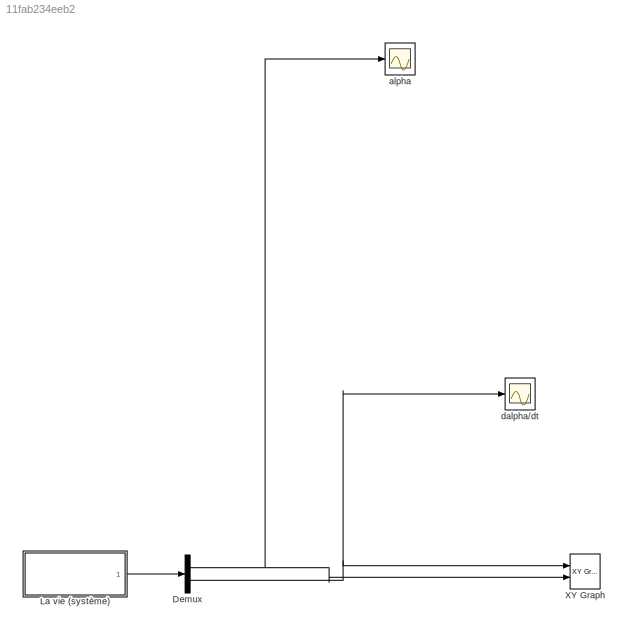
MODEL slx_11fab234eeb2
KIND model
CONFIG AbsTol = auto
CONFIG FixedStep = 0.1
CONFIG MaxStep = auto
CONFIG MinStep = auto
CONFIG RelTol = 1e-8
CONFIG SampleTimeConstraint = Unconstrained
CONFIG Solver = ode3
CONFIG SolverMode = Auto
CONFIG SolverName = ode3
CONFIG StartTime = 0.0
CONFIG StopTime = 100
BLOCK [Demux] Demux
  DisplayOption = bar
  Outputs = 2
  Ports = [1, 2]
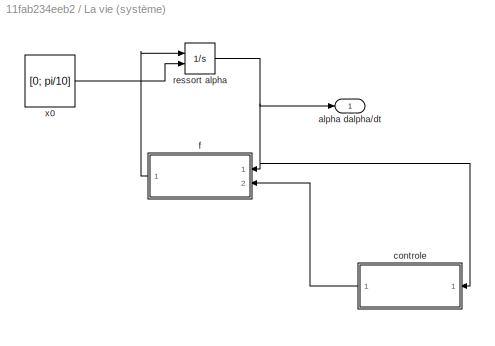
BLOCK [SubSystem] La vie (système)
  Ports = [0, 1]
  RequestExecContextInheritance = off
BLOCK [Outport] La vie (système)/alpha dalpha//dt
  IconDisplay = Port number
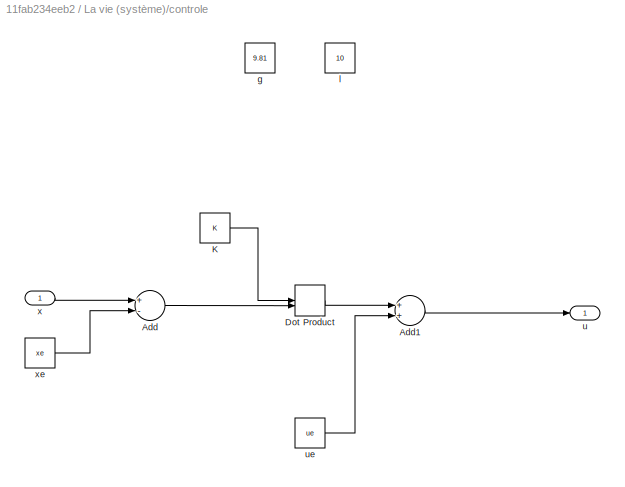
BLOCK [SubSystem] La vie (système)/controle
  Ports = [1, 1]
  RequestExecContextInheritance = off
  TreatAsAtomicUnit = on
BLOCK [Sum] La vie (système)/controle/Add
  InputSameDT = off
  Inputs = +-
  OutDataTypeStr = Inherit: Inherit via internal rule
  Ports = [2, 1]
  SaturateOnIntegerOverflow = off
BLOCK [Sum] La vie (système)/controle/Add1
  InputSameDT = off
  OutDataTypeStr = Inherit: Inherit via internal rule
  Ports = [2, 1]
  SaturateOnIntegerOverflow = off
BLOCK [DotProduct] La vie (système)/controle/Dot Product
  OutDataTypeStr = Inherit: Inherit via internal rule
BLOCK [Constant] La vie (système)/controle/K
  Value = K
BLOCK [Constant] La vie (système)/controle/g
  Value = 9.81
BLOCK [Constant] La vie (système)/controle/l
  Value = 10
BLOCK [Outport] La vie (système)/controle/u
  IconDisplay = Port number
BLOCK [Constant] La vie (système)/controle/ue
  Value = ue
BLOCK [Inport] La vie (système)/controle/x
  IconDisplay = Port number
BLOCK [Constant] La vie (système)/controle/xe
  Value = xe
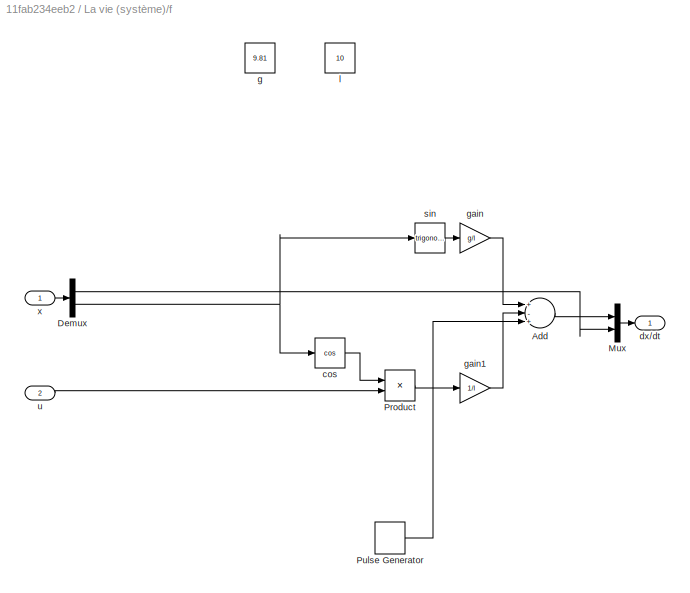
BLOCK [SubSystem] La vie (système)/f
  Ports = [2, 1]
  RequestExecContextInheritance = off
  TreatAsAtomicUnit = on
BLOCK [Gain] La vie (système)/f/ gain
  Gain = g/l
  OutDataTypeStr = Inherit: Inherit via internal rule
  ParamDataTypeStr = Inherit: Inherit via internal rule
  SaturateOnIntegerOverflow = off
BLOCK [Gain] La vie (système)/f/ gain1
  Gain = 1/l
  OutDataTypeStr = Inherit: Inherit via internal rule
  ParamDataTypeStr = Inherit: Inherit via internal rule
  SaturateOnIntegerOverflow = off
BLOCK [Sum] La vie (système)/f/Add
  InputSameDT = off
  Inputs = +-+
  OutDataTypeStr = Inherit: Inherit via internal rule
  Ports = [3, 1]
  SaturateOnIntegerOverflow = off
BLOCK [Demux] La vie (système)/f/Demux
  DisplayOption = bar
  Outputs = 2
  Ports = [1, 2]
BLOCK [Mux] La vie (système)/f/Mux
  DisplayOption = bar
  Inputs = 2
  Ports = [2, 1]
BLOCK [Product] La vie (système)/f/Product
  InputSameDT = off
  OutDataTypeStr = Inherit: Inherit via internal rule
  Ports = [2, 1]
  RndMeth = Floor
  SaturateOnIntegerOverflow = off
BLOCK [DiscretePulseGenerator] La vie (système)/f/Pulse Generator
  Amplitude = 10
  Period = 10
  Ports = [0, 1]
  PulseType = Time based
BLOCK [Trigonometry] La vie (système)/f/cos
  Operator = cos
  Ports = [1, 1]
BLOCK [Outport] La vie (système)/f/dx//dt
  IconDisplay = Port number
BLOCK [Constant] La vie (système)/f/g
  Value = 9.81
BLOCK [Constant] La vie (système)/f/l
  Value = 10
BLOCK [Trigonometry] La vie (système)/f/sin
  Ports = [1, 1]
BLOCK [Inport] La vie (système)/f/u
  IconDisplay = Port number
  Port = 2
BLOCK [Inport] La vie (système)/f/x
  IconDisplay = Port number
BLOCK [Integrator] La vie (système)/ressort alpha
  InitialConditionSource = external
  Ports = [2, 1]
BLOCK [Constant] La vie (système)/x0
  Value = [0; pi/10]
BLOCK [Reference] XY Graph  REF=simulink/Sinks/XY Graph
  Ports = [2]
  SourceBlock = simulink/Sinks/XY Graph
  SourceType = XY scope.
  st = -1
  xmax = 10
  xmin = -10
  ymax = 10
  ymin = -10
BLOCK [Scope] alpha
  Floating = off
  NumInputPorts = 1
  Ports = [1]
BLOCK [Scope] dalpha//dt
  Floating = off
  NumInputPorts = 1
  Ports = [1]
  SaveName = ScopeData1
NET Demux:1 -> XY Graph:2, alpha:1
NET Demux:2 -> XY Graph:1, dalpha//dt:1
LINE La vie (système)/controle/Add1:1 -> La vie (système)/controle/u:1
LINE La vie (système)/controle/Add:1 -> La vie (système)/controle/Dot Product:2
LINE La vie (système)/controle/Dot Product:1 -> La vie (système)/controle/Add1:1
LINE La vie (système)/controle/K:1 -> La vie (système)/controle/Dot Product:1
LINE La vie (système)/controle/ue:1 -> La vie (système)/controle/Add1:2
LINE La vie (système)/controle/x:1 -> La vie (système)/controle/Add:1
LINE La vie (système)/controle/xe:1 -> La vie (système)/controle/Add:2
LINE La vie (système)/controle:1 -> La vie (système)/f:2
LINE La vie (système)/f/ gain1:1 -> La vie (système)/f/Add:2
LINE La vie (système)/f/ gain:1 -> La vie (système)/f/Add:1
LINE La vie (système)/f/Add:1 -> La vie (système)/f/Mux:1
LINE La vie (système)/f/Demux:1 -> La vie (système)/f/Mux:2
NET La vie (système)/f/Demux:2 -> La vie (système)/f/cos:1, La vie (système)/f/sin:1
LINE La vie (système)/f/Mux:1 -> La vie (système)/f/dx//dt:1
LINE La vie (système)/f/Product:1 -> La vie (système)/f/ gain1:1
LINE La vie (système)/f/Pulse Generator:1 -> La vie (système)/f/Add:3
LINE La vie (système)/f/cos:1 -> La vie (système)/f/Product:1
LINE La vie (système)/f/sin:1 -> La vie (système)/f/ gain:1
LINE La vie (système)/f/u:1 -> La vie (système)/f/Product:2
LINE La vie (système)/f/x:1 -> La vie (système)/f/Demux:1
LINE La vie (système)/f:1 -> La vie (système)/ressort alpha:1
NET La vie (système)/ressort alpha:1 -> La vie (système)/alpha dalpha//dt:1, La vie (système)/controle:1, La vie (système)/f:1
LINE La vie (système)/x0:1 -> La vie (système)/ressort alpha:2
LINE La vie (système):1 -> Demux:1
note: NET lines group one-source signal fan-out (src -> all destinations, sorted); 1:1 wires keep LINE
